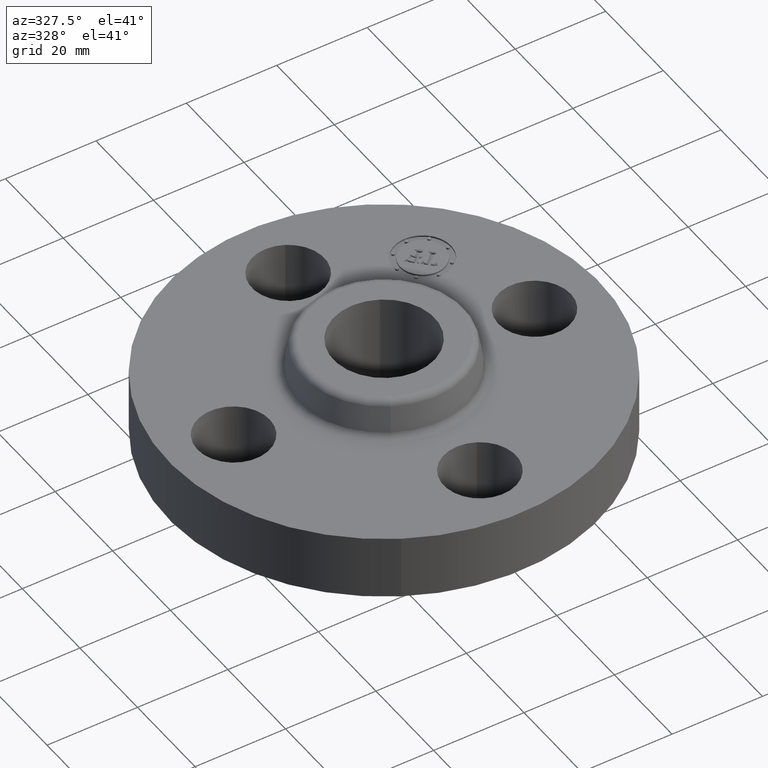
[diagram: clean part render]
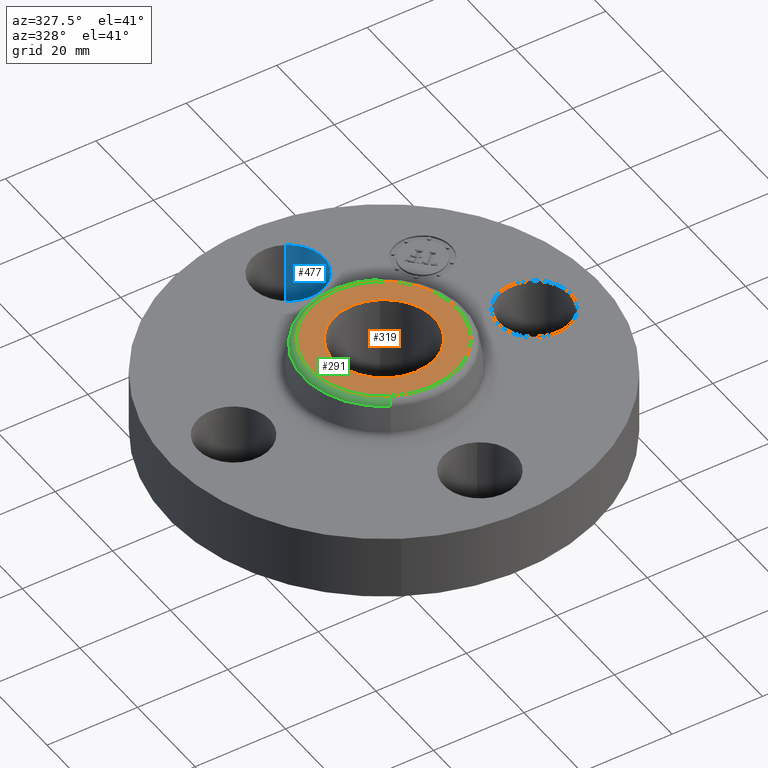
[diagram: same view with three faces highlighted in distinct colors, each labeled with its STEP entity id]
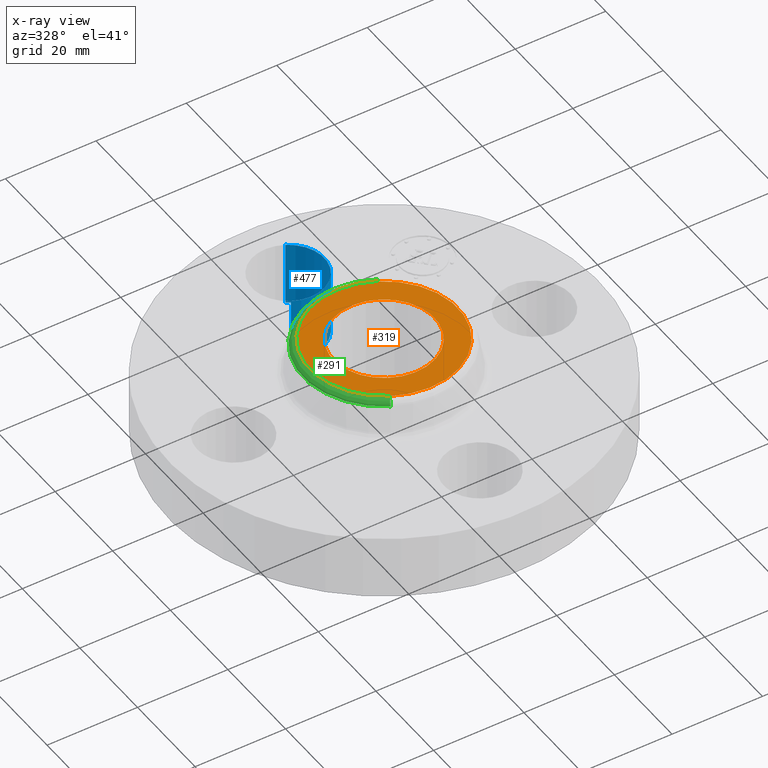
[diagram: x-ray of the same camera — body ghosted, the three highlighted faces saturated]
A machine part, auxiliary view with three faces highlighted in distinct colors.
The next image is the same camera in x-ray (body ghosted, the three faces saturated) — at least one of them is partly hidden behind the body in this view.
Their STEP definitions:

[orange] entity #319 — the highlighted planar face has unit normal (0, 0, -1).
#263=AXIS2_PLACEMENT_3D('Circle Axis2P3D',#261,#262,$) ;
#282=AXIS2_PLACEMENT_3D('Circle Axis2P3D',#280,#281,$) ;
#295=AXIS2_PLACEMENT_3D('Plane Axis2P3D',#292,#293,#294) ;
#303=AXIS2_PLACEMENT_3D('Circle Axis2P3D',#301,#302,$) ;
#312=AXIS2_PLACEMENT_3D('Circle Axis2P3D',#310,#311,$) ;
#258=CARTESIAN_POINT('Vertex',(0.308380595934,0.564486894472,0.880000000004)) ;
#261=CARTESIAN_POINT('Axis2P3D Location',(0.,0.,0.880000000004)) ;
#265=CARTESIAN_POINT('Vertex',(-0.308380595934,-0.564486894472,0.880000000004)) ;
#280=CARTESIAN_POINT('Axis2P3D Location',(0.,0.,0.880000000004)) ;
#292=CARTESIAN_POINT('Axis2P3D Location',(0.,0.643229388305,0.880000000004)) ;
#301=CARTESIAN_POINT('Axis2P3D Location',(0.,0.,0.880000000004)) ;
#305=CARTESIAN_POINT('Vertex',(-0.210947236987,-0.386136327233,0.880000000004)) ;
#307=CARTESIAN_POINT('Vertex',(0.210947236987,0.386136327233,0.880000000004)) ;
#310=CARTESIAN_POINT('Axis2P3D Location',(0.,0.,0.880000000004)) ;
#262=DIRECTION('Axis2P3D Direction',(0.,0.,-0.0393700787402)) ;
#281=DIRECTION('Axis2P3D Direction',(0.,0.,-0.0393700787402)) ;
#293=DIRECTION('Axis2P3D Direction',(0.,0.,-0.0393700787402)) ;
#294=DIRECTION('Axis2P3D XDirection',(0.0393700787402,0.,0.)) ;
#302=DIRECTION('Axis2P3D Direction',(0.,0.,-0.0393700787402)) ;
#311=DIRECTION('Axis2P3D Direction',(0.,0.,-0.0393700787402)) ;
#298=ORIENTED_EDGE('',*,*,#267,.F.) ;
#299=ORIENTED_EDGE('',*,*,#284,.F.) ;
#316=ORIENTED_EDGE('',*,*,#309,.T.) ;
#317=ORIENTED_EDGE('',*,*,#314,.T.) ;
#318=FACE_BOUND('',#315,.T.) ;
#319=ADVANCED_FACE('PartBody',(#300,#318),#296,.F.) ;
#264=CIRCLE('generated circle',#263,0.643229388305) ;
#283=CIRCLE('generated circle',#282,0.643229388305) ;
#304=CIRCLE('generated circle',#303,0.440000000002) ;
#313=CIRCLE('generated circle',#312,0.440000000002) ;
#267=EDGE_CURVE('',#259,#266,#264,.T.) ;
#284=EDGE_CURVE('',#266,#259,#283,.T.) ;
#309=EDGE_CURVE('',#306,#308,#304,.T.) ;
#314=EDGE_CURVE('',#308,#306,#313,.T.) ;
#297=EDGE_LOOP('',(#298,#299)) ;
#315=EDGE_LOOP('',(#316,#317)) ;
#300=FACE_OUTER_BOUND('',#297,.T.) ;
#296=PLANE('',#295) ;
#259=VERTEX_POINT('',#258) ;
#266=VERTEX_POINT('',#265) ;
#306=VERTEX_POINT('',#305) ;
#308=VERTEX_POINT('',#307) ;

[blue] entity #477 — the highlighted cylindrical surface (partial cylindrical patch) has radius 8.001 mm, axis along (0, 0, -1).
#427=AXIS2_PLACEMENT_3D('Circle Axis2P3D',#425,#426,$) ;
#438=AXIS2_PLACEMENT_3D('Cylinder Axis2P3D',#435,#436,#437) ;
#468=AXIS2_PLACEMENT_3D('Circle Axis2P3D',#466,#467,$) ;
#420=CARTESIAN_POINT('Vertex',(-0.151019044661,1.03356149301,0.)) ;
#422=CARTESIAN_POINT('Vertex',(0.151019044661,1.586438507,0.)) ;
#425=CARTESIAN_POINT('Axis2P3D Location',(-3.84644197508E-016,1.31000000001,0.)) ;
#435=CARTESIAN_POINT('Axis2P3D Location',(-2.40643096033E-016,1.31000000001,0.556062992128)) ;
#440=CARTESIAN_POINT('Line Origine',(-0.151019044661,1.03356149301,0.280000000001)) ;
#444=CARTESIAN_POINT('Vertex',(-0.151019044661,1.03356149301,0.560000000002)) ;
#447=CARTESIAN_POINT('Line Origine',(0.151019044661,1.586438507,0.280000000001)) ;
#451=CARTESIAN_POINT('Vertex',(0.151019044661,1.586438507,0.560000000002)) ;
#466=CARTESIAN_POINT('Axis2P3D Location',(-2.40643096033E-016,1.31000000001,0.560000000002)) ;
#426=DIRECTION('Axis2P3D Direction',(0.,0.,-0.0393700787402)) ;
#436=DIRECTION('Axis2P3D Direction',(0.,0.,-0.0393700787402)) ;
#437=DIRECTION('Axis2P3D XDirection',(0.0188750212049,0.0345504945626,0.)) ;
#441=DIRECTION('Vector Direction',(0.,0.,-0.0393700787402)) ;
#448=DIRECTION('Vector Direction',(0.,0.,-0.0393700787402)) ;
#467=DIRECTION('Axis2P3D Direction',(0.,0.,-0.0393700787402)) ;
#442=VECTOR('Line Direction',#441,0.0393700787402) ;
#449=VECTOR('Line Direction',#448,0.0393700787402) ;
#472=ORIENTED_EDGE('',*,*,#453,.F.) ;
#473=ORIENTED_EDGE('',*,*,#429,.T.) ;
#474=ORIENTED_EDGE('',*,*,#446,.T.) ;
#475=ORIENTED_EDGE('',*,*,#470,.F.) ;
#477=ADVANCED_FACE('PartBody',(#476),#439,.F.) ;
#428=CIRCLE('generated circle',#427,0.315000000001) ;
#469=CIRCLE('generated circle',#468,0.315000000001) ;
#439=CYLINDRICAL_SURFACE('generated cylinder',#438,0.315000000001) ;
#429=EDGE_CURVE('',#423,#421,#428,.T.) ;
#446=EDGE_CURVE('',#421,#445,#443,.F.) ;
#453=EDGE_CURVE('',#423,#452,#450,.F.) ;
#470=EDGE_CURVE('',#452,#445,#469,.T.) ;
#471=EDGE_LOOP('',(#472,#473,#474,#475)) ;
#476=FACE_OUTER_BOUND('',#471,.T.) ;
#443=LINE('Line',#440,#442) ;
#450=LINE('Line',#447,#449) ;
#421=VERTEX_POINT('',#420) ;
#423=VERTEX_POINT('',#422) ;
#445=VERTEX_POINT('',#444) ;
#452=VERTEX_POINT('',#451) ;

[green] entity #291 — the highlighted toroidal blend (fillet) surface has major radius 16.338 mm and minor (blend) radius 1.524 mm.
#239=AXIS2_PLACEMENT_3D('Circle Axis2P3D',#237,#238,$) ;
#252=AXIS2_PLACEMENT_3D('Torus Axis2P3D',#249,#250,#251) ;
#256=AXIS2_PLACEMENT_3D('Circle Axis2P3D',#254,#255,$) ;
#270=AXIS2_PLACEMENT_3D('Circle Axis2P3D',#268,#269,$) ;
#282=AXIS2_PLACEMENT_3D('Circle Axis2P3D',#280,#281,$) ;
#215=CARTESIAN_POINT('Vertex',(0.336709115179,0.616341901124,0.830418890663)) ;
#222=CARTESIAN_POINT('Vertex',(-0.336709115179,-0.616341901124,0.830418890663)) ;
#237=CARTESIAN_POINT('Axis2P3D Location',(0.,0.,0.830418890663)) ;
#249=CARTESIAN_POINT('Axis2P3D Location',(0.,0.,0.820000000003)) ;
#254=CARTESIAN_POINT('Axis2P3D Location',(0.308380595934,0.564486894472,0.820000000003)) ;
#258=CARTESIAN_POINT('Vertex',(0.308380595934,0.564486894472,0.880000000004)) ;
#265=CARTESIAN_POINT('Vertex',(-0.308380595934,-0.564486894472,0.880000000004)) ;
#268=CARTESIAN_POINT('Axis2P3D Location',(-0.308380595934,-0.564486894472,0.820000000003)) ;
#280=CARTESIAN_POINT('Axis2P3D Location',(0.,0.,0.880000000004)) ;
#238=DIRECTION('Axis2P3D Direction',(0.,0.,-0.0393700787402)) ;
#250=DIRECTION('Axis2P3D Direction',(0.,0.,-0.0393700787402)) ;
#251=DIRECTION('Axis2P3D XDirection',(-0.0188750212049,-0.0345504945626,0.)) ;
#255=DIRECTION('Axis2P3D Direction',(-0.0345504945626,0.0188750212049,0.)) ;
#269=DIRECTION('Axis2P3D Direction',(0.0345504945626,-0.0188750212049,0.)) ;
#281=DIRECTION('Axis2P3D Direction',(0.,0.,-0.0393700787402)) ;
#286=ORIENTED_EDGE('',*,*,#241,.F.) ;
#287=ORIENTED_EDGE('',*,*,#272,.T.) ;
#288=ORIENTED_EDGE('',*,*,#284,.T.) ;
#289=ORIENTED_EDGE('',*,*,#260,.F.) ;
#291=ADVANCED_FACE('PartBody',(#290),#253,.T.) ;
#240=CIRCLE('generated circle',#239,0.702317853486) ;
#257=CIRCLE('generated circle',#256,0.0600000000002) ;
#271=CIRCLE('generated circle',#270,0.0600000000002) ;
#283=CIRCLE('generated circle',#282,0.643229388305) ;
#253=TOROIDAL_SURFACE('homeo Torus',#252,0.643229388305,0.0600000000002) ;
#241=EDGE_CURVE('',#223,#216,#240,.T.) ;
#260=EDGE_CURVE('',#216,#259,#257,.F.) ;
#272=EDGE_CURVE('',#223,#266,#271,.F.) ;
#284=EDGE_CURVE('',#266,#259,#283,.T.) ;
#285=EDGE_LOOP('',(#286,#287,#288,#289)) ;
#290=FACE_OUTER_BOUND('',#285,.T.) ;
#216=VERTEX_POINT('',#215) ;
#223=VERTEX_POINT('',#222) ;
#259=VERTEX_POINT('',#258) ;
#266=VERTEX_POINT('',#265) ;